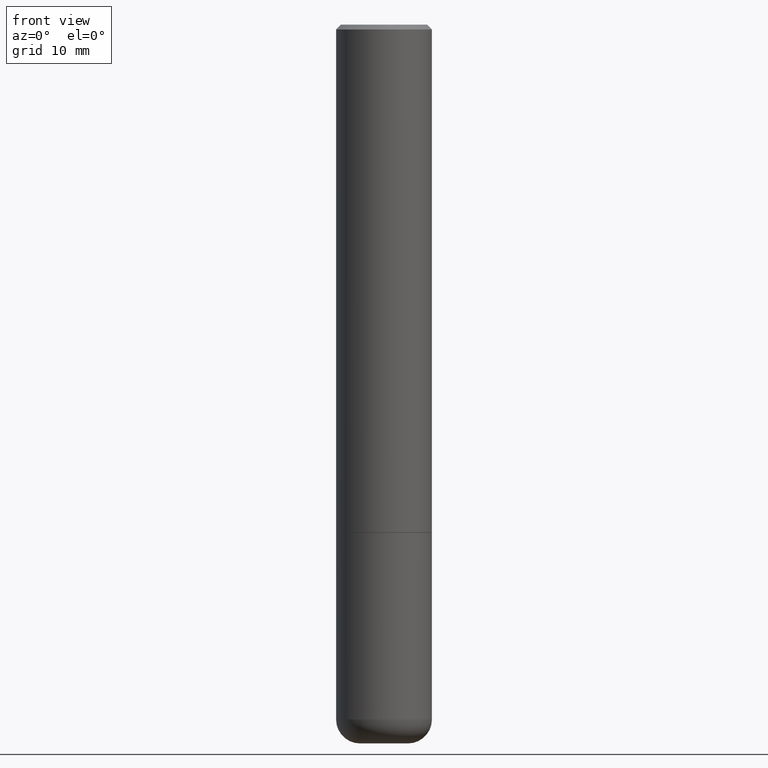
[diagram: clean part render]
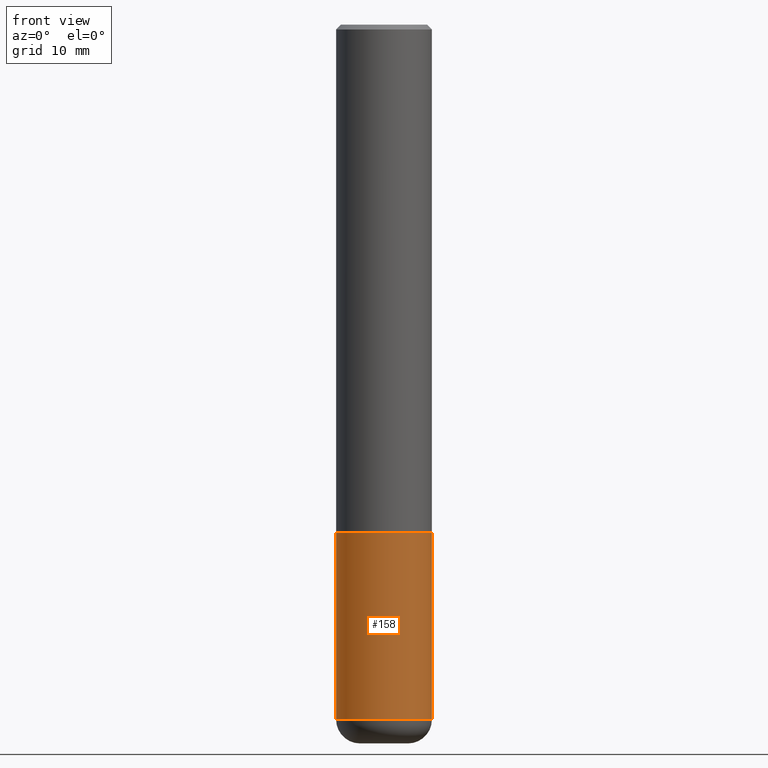
[diagram: same view with one face highlighted and labeled with its STEP entity id]
A machine part, front view. The second image highlights one B-rep face of the part: STEP entity #158.
In plain terms, the highlighted cylindrical surface (partial cylindrical patch) has radius 5 mm, axis along (-0, 0, 1).
Its self-contained STEP definition (entity closure, byte-faithful):
#3 = VERTEX_POINT ( 'NONE', #134 ) ;
#4 = CIRCLE ( 'NONE', #61, 0.1968500000000000250 ) ;
#13 = DIRECTION ( 'NONE',  ( -2.445468806185136877E-29, 3.491481338843145188E-15, 1.000000000000000000 ) ) ;
#16 = LINE ( 'NONE', #237, #17 ) ;
#17 = VECTOR ( 'NONE', #179, 39.37007874015748143 ) ;
#21 = EDGE_LOOP ( 'NONE', ( #58, #299, #366, #115 ) ) ;
#33 = DIRECTION ( 'NONE',  ( -2.445468806185136597E-29, 3.491481338843145583E-15, 1.000000000000000000 ) ) ;
#48 = EDGE_CURVE ( 'NONE', #215, #123, #4, .T. ) ;
#58 = ORIENTED_EDGE ( 'NONE', *, *, #394, .F. ) ;
#61 = AXIS2_PLACEMENT_3D ( 'NONE', #98, #33, #350 ) ;
#98 = CARTESIAN_POINT ( 'NONE',  ( 6.980346160374851918E-29, -9.966084333593872426E-15, -2.854399999999999604 ) ) ;
#106 = CARTESIAN_POINT ( 'NONE',  ( 0.1968500000000000527, -1.134068053669641403E-14, -2.854399999999999604 ) ) ;
#115 = ORIENTED_EDGE ( 'NONE', *, *, #330, .F. ) ;
#123 = VERTEX_POINT ( 'NONE', #106 ) ;
#134 = CARTESIAN_POINT ( 'NONE',  ( -0.1968500000000000250, -7.227175846335174678E-15, -2.086699999999999999 ) ) ;
#139 = DIRECTION ( 'NONE',  ( 1.000000000000000000, -6.982962677686265922E-15, 4.876176775795935793E-29 ) ) ;
#144 = CYLINDRICAL_SURFACE ( 'NONE', #397, 0.1968500000000000250 ) ;
#158 = ADVANCED_FACE ( 'NONE', ( #229 ), #144, .T. ) ;
#179 = DIRECTION ( 'NONE',  ( -2.445468806185136877E-29, 3.491481338843145188E-15, 1.000000000000000000 ) ) ;
#209 = CARTESIAN_POINT ( 'NONE',  ( 5.102959757866523939E-29, -7.285674109763990928E-15, -2.086699999999999999 ) ) ;
#210 = AXIS2_PLACEMENT_3D ( 'NONE', #209, #401, #328 ) ;
#215 = VERTEX_POINT ( 'NONE', #263 ) ;
#229 = FACE_OUTER_BOUND ( 'NONE', #21, .T. ) ;
#230 = EDGE_CURVE ( 'NONE', #123, #398, #359, .T. ) ;
#231 = CARTESIAN_POINT ( 'NONE',  ( 0.1968500000000000250, -1.374596203102541608E-15, 9.598753983154300858E-30 ) ) ;
#232 = VECTOR ( 'NONE', #13, 39.37007874015748143 ) ;
#237 = CARTESIAN_POINT ( 'NONE',  ( -0.1968500000000000250, 1.398703375343757393E-15, -9.682923725166783677E-30 ) ) ;
#263 = CARTESIAN_POINT ( 'NONE',  ( -0.1968500000000000527, -8.567380958250117005E-15, -2.854399999999999604 ) ) ;
#267 = CARTESIAN_POINT ( 'NONE',  ( 0.000000000000000000, 0.000000000000000000, 0.000000000000000000 ) ) ;
#299 = ORIENTED_EDGE ( 'NONE', *, *, #48, .T. ) ;
#300 = CARTESIAN_POINT ( 'NONE',  ( 0.1968500000000000250, -8.660270312866532536E-15, -2.086699999999999999 ) ) ;
#328 = DIRECTION ( 'NONE',  ( 1.000000000000000000, -6.982962677686267499E-15, 0.000000000000000000 ) ) ;
#330 = EDGE_CURVE ( 'NONE', #3, #398, #390, .T. ) ;
#350 = DIRECTION ( 'NONE',  ( 1.000000000000000000, -6.982962677686267499E-15, 0.000000000000000000 ) ) ;
#357 = DIRECTION ( 'NONE',  ( -2.445468806185136597E-29, 3.491481338843145583E-15, 1.000000000000000000 ) ) ;
#359 = LINE ( 'NONE', #231, #232 ) ;
#366 = ORIENTED_EDGE ( 'NONE', *, *, #230, .T. ) ;
#390 = CIRCLE ( 'NONE', #210, 0.1968500000000000250 ) ;
#394 = EDGE_CURVE ( 'NONE', #215, #3, #16, .T. ) ;
#397 = AXIS2_PLACEMENT_3D ( 'NONE', #267, #357, #139 ) ;
#398 = VERTEX_POINT ( 'NONE', #300 ) ;
#401 = DIRECTION ( 'NONE',  ( -2.445468806185136597E-29, 3.491481338843145583E-15, 1.000000000000000000 ) ) ;